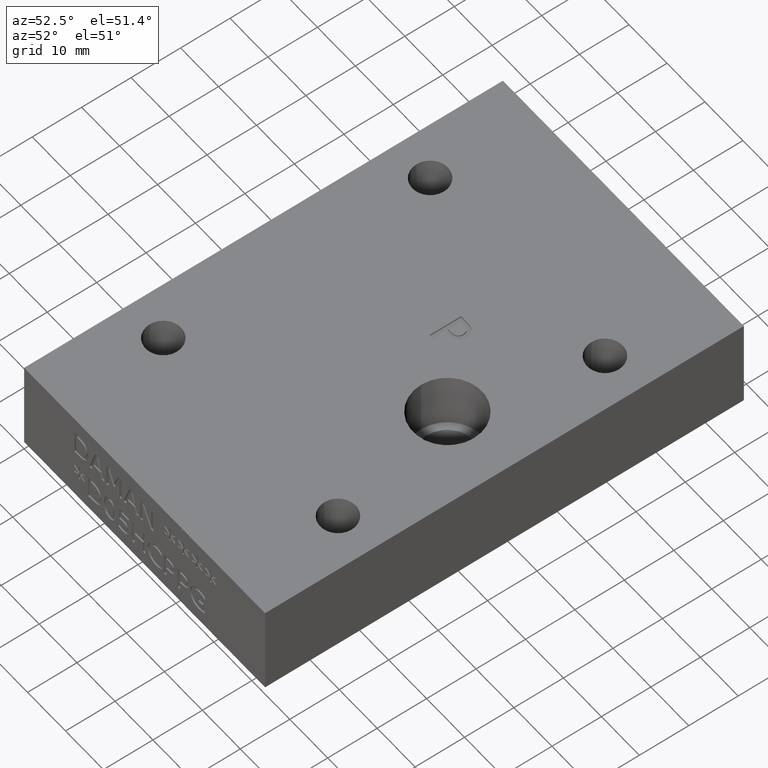
[diagram: clean part render]
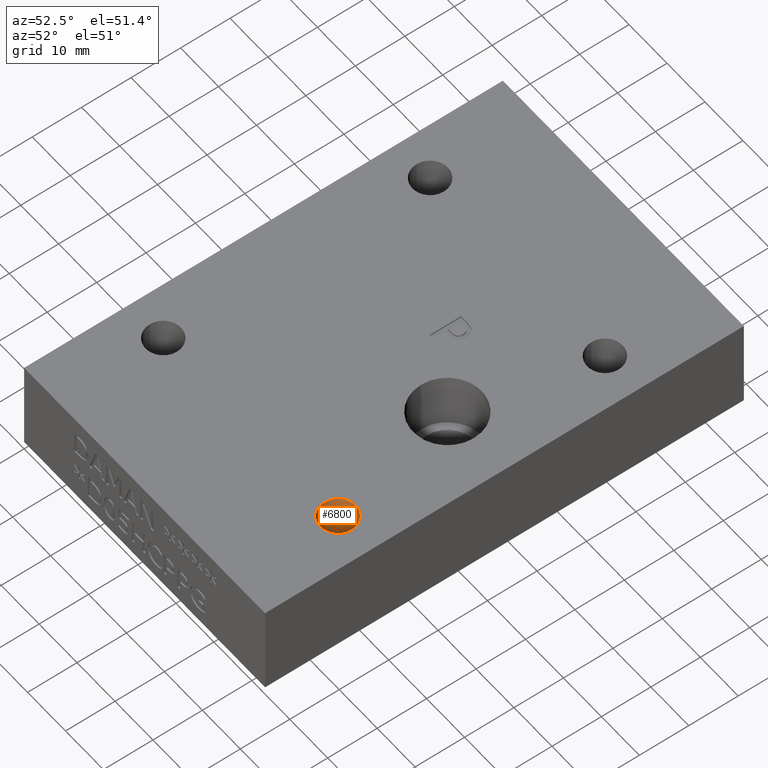
[diagram: same view with one face highlighted and labeled with its STEP entity id]
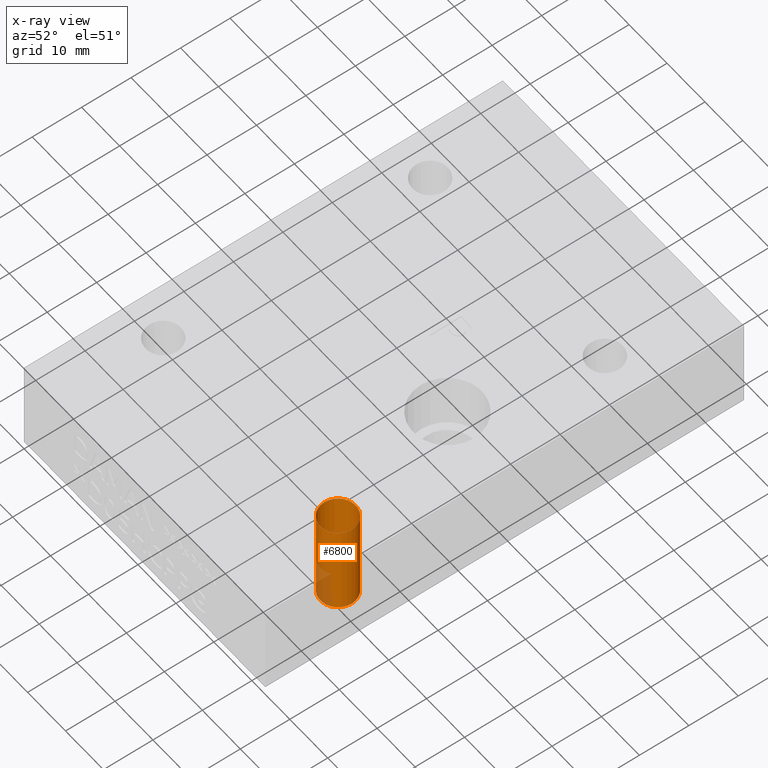
[diagram: x-ray of the same camera — body ghosted, the highlighted face saturated]
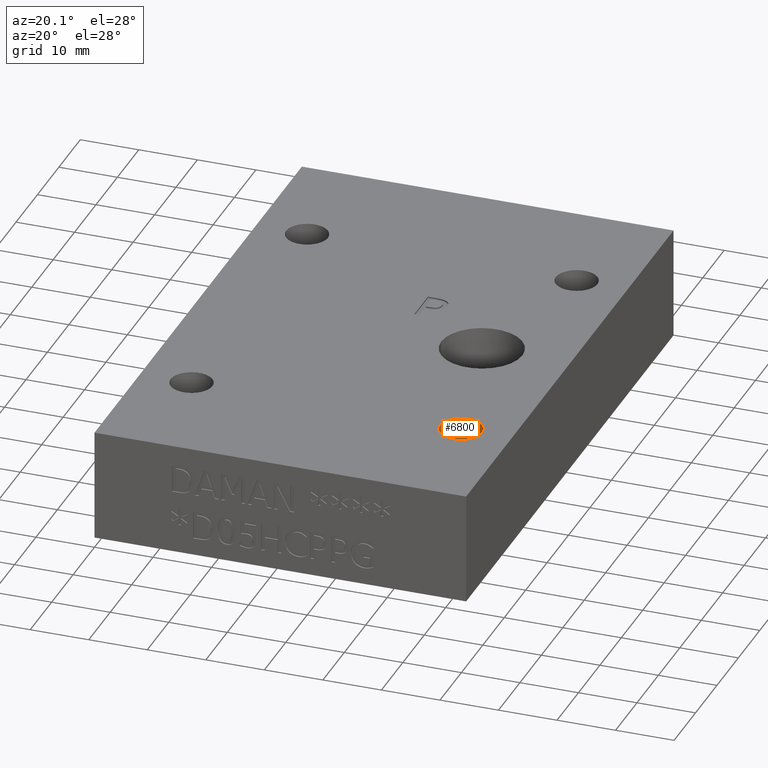
[diagram: same view with one face highlighted and labeled with its STEP entity id]
A machine part, auxiliary view. The second image highlights one B-rep face of the part: STEP entity #6800.
The next image is the same camera in x-ray: the body ghosted, the highlighted face saturated — about 11% of this face is hidden behind the body in this view.
A second angle (auxiliary view) of the same face is appended — the face is thin or edge-on in the first view.
In plain terms, the highlighted cylindrical surface (bore or boss wall) has radius 3.5687 mm, axis along (0, 0, -1).
Its self-contained STEP definition (entity closure, byte-faithful):
#24=CYLINDRICAL_SURFACE('',#7125,0.1405);
#33=CIRCLE('',#7064,0.1405);
#42=CIRCLE('',#7077,0.1405);
#43=CIRCLE('',#7078,0.1405);
#564=FACE_OUTER_BOUND('',#964,.T.);
#964=EDGE_LOOP('',(#6154,#6155,#6156,#6157,#6158));
#1704=LINE('',#11973,#2437);
#2437=VECTOR('',#8458,0.1405);
#3235=VERTEX_POINT('',#11840);
#3254=VERTEX_POINT('',#11885);
#3255=VERTEX_POINT('',#11886);
#4189=EDGE_CURVE('',#3235,#3235,#33,.T.);
#4211=EDGE_CURVE('',#3254,#3255,#42,.T.);
#4212=EDGE_CURVE('',#3255,#3254,#43,.T.);
#4252=EDGE_CURVE('',#3235,#3255,#1704,.T.);
#6154=ORIENTED_EDGE('',*,*,#4189,.F.);
#6155=ORIENTED_EDGE('',*,*,#4252,.T.);
#6156=ORIENTED_EDGE('',*,*,#4211,.F.);
#6157=ORIENTED_EDGE('',*,*,#4212,.F.);
#6158=ORIENTED_EDGE('',*,*,#4252,.F.);
#6800=ADVANCED_FACE('',(#564),#24,.F.);
#7064=AXIS2_PLACEMENT_3D('',#11841,#8313,#8314);
#7077=AXIS2_PLACEMENT_3D('',#11887,#8352,#8353);
#7078=AXIS2_PLACEMENT_3D('',#11888,#8354,#8355);
#7125=AXIS2_PLACEMENT_3D('',#11972,#8456,#8457);
#8313=DIRECTION('center_axis',(0.,0.,-1.));
#8314=DIRECTION('ref_axis',(1.,0.,0.));
#8352=DIRECTION('center_axis',(0.,0.,1.));
#8353=DIRECTION('ref_axis',(1.,0.,0.));
#8354=DIRECTION('center_axis',(0.,0.,1.));
#8355=DIRECTION('ref_axis',(1.,0.,0.));
#8456=DIRECTION('center_axis',(0.,0.,-1.));
#8457=DIRECTION('ref_axis',(1.,0.,0.));
#8458=DIRECTION('',(0.,0.,-1.));
#11840=CARTESIAN_POINT('',(2.01625,0.84375,0.75));
#11841=CARTESIAN_POINT('Origin',(2.15675,0.84375,0.75));
#11885=CARTESIAN_POINT('',(2.29725,0.84375,0.));
#11886=CARTESIAN_POINT('',(2.01625,0.84375,0.));
#11887=CARTESIAN_POINT('Origin',(2.15675,0.84375,0.));
#11888=CARTESIAN_POINT('Origin',(2.15675,0.84375,0.));
#11972=CARTESIAN_POINT('Origin',(2.15675,0.84375,0.425));
#11973=CARTESIAN_POINT('',(2.01625,0.84375,0.425));